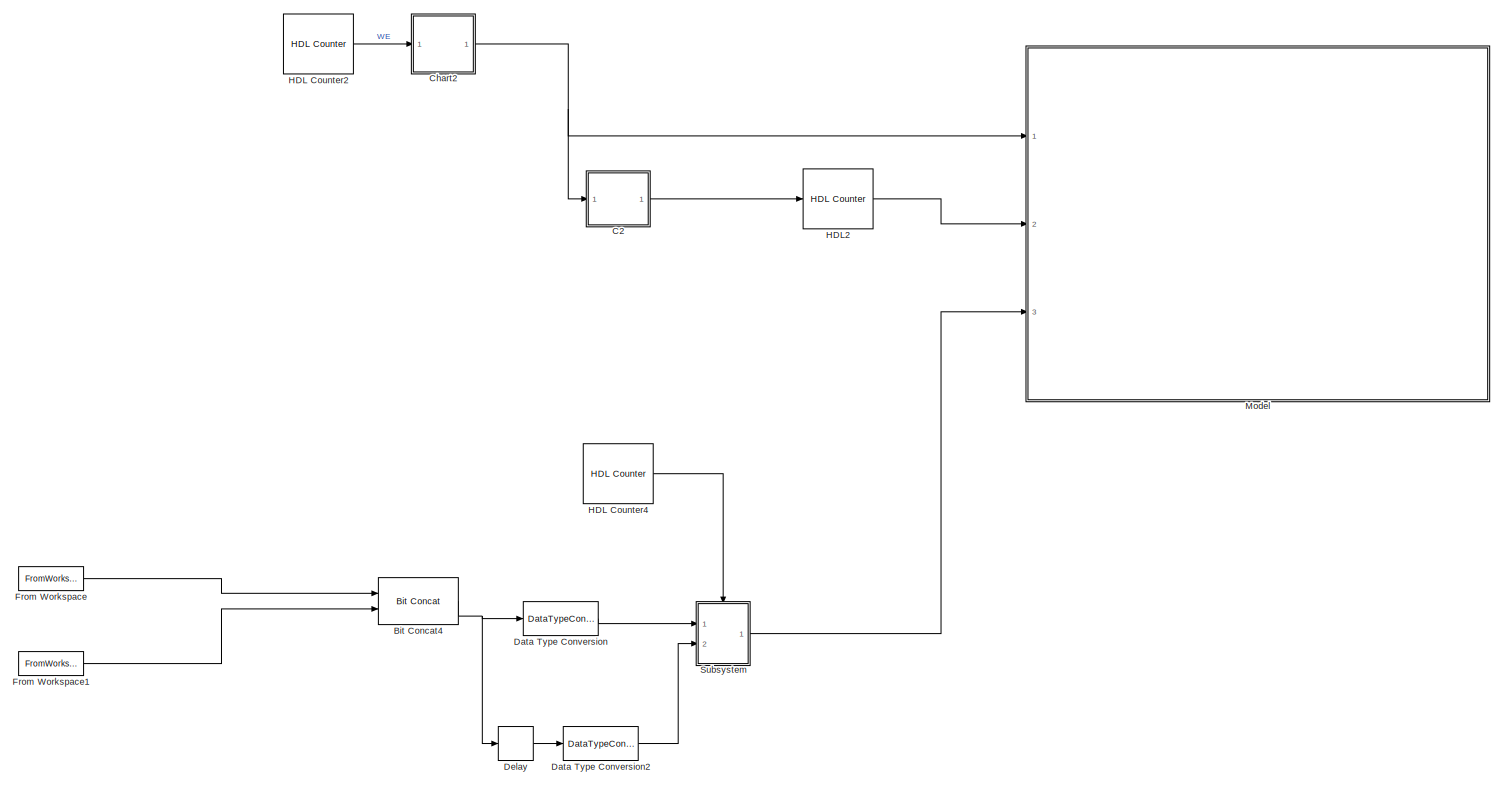
[diagram: root canvas - part 1/1, most of the canvas]
MODEL slx_61a1dca97e05
KIND model
CONFIG AbsTol = auto
CONFIG EnableMultiTasking = off
CONFIG FixedStep = auto
CONFIG MaxStep = auto
CONFIG MinStep = auto
CONFIG RelTol = 1e-3
CONFIG SampleTimeConstraint = Unconstrained
CONFIG SolverName = VariableStepAuto
CONFIG StartTime = 0.0
CONFIG StopTime = 50
BLOCK [Reference] Bit Concat4  REF=hdlsllib/Logic and Bit
Operations/Bit Concat
  Ports = [2, 1]
  SourceBlock = hdlsllib/Logic and Bit\nOperations/Bit Concat
  SourceProductBaseCode = SL
  SourceType = Bit Concat
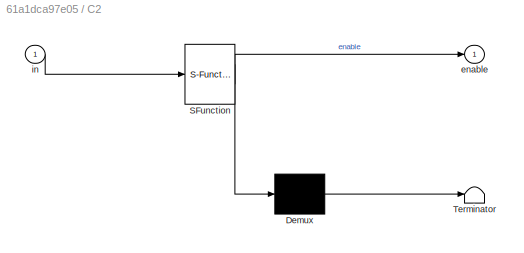
BLOCK [SubSystem] C2
  ErrorFcn = Stateflow.Translate.translate
  PermitHierarchicalResolution = ExplicitOnly
  Ports = [1, 1]
  RequestExecContextInheritance = off
  SFBlockType = Chart
  TreatAsAtomicUnit = on
BLOCK [Demux] C2/ Demux 
  Outputs = 1
  Ports = [1, 1]
BLOCK [S-Function] C2/ SFunction 
  EnableBusSupport = on
  FunctionName = sf_sfun
  PortCounts = [1 2]
  Ports = [1, 2]
  SFcnIsStateOwnerBlock = off
  SFunctionDeploymentMode = off
  Tag = Stateflow S-Function 1
BLOCK [Terminator] C2/ Terminator 
BLOCK [Outport] C2/enable
BLOCK [Inport] C2/in
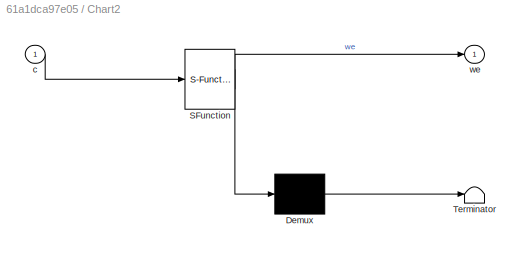
BLOCK [SubSystem] Chart2
  ErrorFcn = Stateflow.Translate.translate
  PermitHierarchicalResolution = ExplicitOnly
  Ports = [1, 1]
  RequestExecContextInheritance = off
  SFBlockType = Chart
  TreatAsAtomicUnit = on
BLOCK [Demux] Chart2/ Demux 
  Outputs = 1
  Ports = [1, 1]
BLOCK [S-Function] Chart2/ SFunction 
  EnableBusSupport = on
  FunctionName = sf_sfun
  PortCounts = [1 2]
  Ports = [1, 2]
  SFcnIsStateOwnerBlock = off
  SFunctionDeploymentMode = off
  Tag = Stateflow S-Function 2
BLOCK [Terminator] Chart2/ Terminator 
BLOCK [Inport] Chart2/c
BLOCK [Outport] Chart2/we
BLOCK [DataTypeConversion] Data Type Conversion
  ConvertRealWorld = Stored Integer (SI)
  OutDataTypeStr = fixdt(1,16,12)
  RndMeth = Floor
  SaturateOnIntegerOverflow = off
BLOCK [DataTypeConversion] Data Type Conversion2
  ConvertRealWorld = Stored Integer (SI)
  OutDataTypeStr = fixdt(1,16,12)
  RndMeth = Floor
  SaturateOnIntegerOverflow = off
BLOCK [Delay] Delay
  DelayLength = 1
  InputPortMap = u0
  Ports = [1, 1]
BLOCK [FromWorkspace] From Workspace
  Interpolate = off
  OutputAfterFinalValue = Holding final value
  SampleTime = 1/t
  VariableName = real
BLOCK [FromWorkspace] From Workspace1
  Interpolate = off
  OutputAfterFinalValue = Holding final value
  SampleTime = 1/t
  VariableName = imag
BLOCK [Reference] HDL Counter2  REF=hdlsllib/Sources/HDL Counter
  Ports = [0, 1]
  SourceBlock = hdlsllib/Sources/HDL Counter
  SourceProductBaseCode = SL
  SourceType = HDL Counter
BLOCK [Reference] HDL Counter4  REF=hdlsllib/Sources/HDL Counter
  Ports = [0, 1]
  SourceBlock = hdlsllib/Sources/HDL Counter
  SourceProductBaseCode = SL
  SourceType = HDL Counter
BLOCK [Reference] HDL2  REF=hdlsllib/Sources/HDL Counter
  Ports = [1, 1]
  SourceBlock = hdlsllib/Sources/HDL Counter
  SourceProductBaseCode = SL
  SourceType = HDL Counter
BLOCK [ModelReference] Model
  ModelNameDialog = SRAM.slx
  ModelReferenceVersion = 1.50
  Ports = [3]
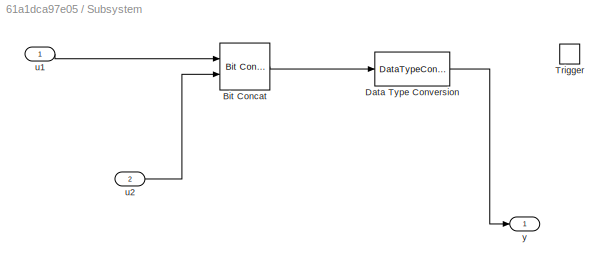
BLOCK [SubSystem] Subsystem
  Ports = [2, 1, 0, 1]
  RequestExecContextInheritance = off
BLOCK [Reference] Subsystem/Bit Concat  REF=hdlsllib/Logic and Bit
Operations/Bit Concat
  Ports = [2, 1]
  SourceBlock = hdlsllib/Logic and Bit\nOperations/Bit Concat
  SourceProductBaseCode = SL
  SourceType = Bit Concat
BLOCK [DataTypeConversion] Subsystem/Data Type Conversion
  ConvertRealWorld = Stored Integer (SI)
  OutDataTypeStr = fixdt(1,32,24)
  RndMeth = Floor
  SaturateOnIntegerOverflow = off
BLOCK [TriggerPort] Subsystem/Trigger
  PortDimensions = 1
  Ports = []
  StatesWhenEnabling = held
  VariantControl = (inherit)
BLOCK [Inport] Subsystem/u1
BLOCK [Inport] Subsystem/u2
  Port = 2
BLOCK [Outport] Subsystem/y
NET Bit Concat4:1 -> Data Type Conversion:1, Delay:1
LINE C2:1 -> HDL2:1
NET Chart2:1 -> C2:1, Model:1
LINE Data Type Conversion2:1 -> Subsystem:2
LINE Data Type Conversion:1 -> Subsystem:1
LINE Delay:1 -> Data Type Conversion2:1
LINE From Workspace1:1 -> Bit Concat4:2
LINE From Workspace:1 -> Bit Concat4:1
LINE HDL Counter2:1 -> Chart2:1
LINE HDL Counter4:1 -> Subsystem:trigger
LINE HDL2:1 -> Model:2
LINE Subsystem/Bit Concat:1 -> Subsystem/Data Type Conversion:1
LINE Subsystem/Data Type Conversion:1 -> Subsystem/y:1
LINE Subsystem/u1:1 -> Subsystem/Bit Concat:1
LINE Subsystem/u2:1 -> Subsystem/Bit Concat:2
LINE Subsystem:1 -> Model:3
note: NET lines group one-source signal fan-out (src -> all destinations, sorted); 1:1 wires keep LINE
CHART C2 states=3 transitions=6
  STATE_LABEL 'default\nenable=true'
  STATE_LABEL 'add\nentry:x=0,enable=false;\nduring :x=x+0.25;\n'
  STATE_LABEL 'x\nenable=false\n'
CHART Chart2 states=4 transitions=9
  STATE_LABEL 'd\nwe=true\n'
  STATE_LABEL 'f\nwe=true;'
  STATE_LABEL 'j\nwe=false;'
  STATE_LABEL 'j1\nwe=false;'
CHART  states=0 transitions=0
CHART  states=0 transitions=0
